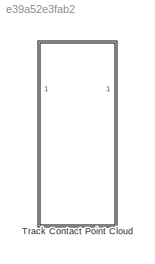
MODEL slx_e39a52e3fab2
KIND library
CONFIG SolverName = VariableStepAuto
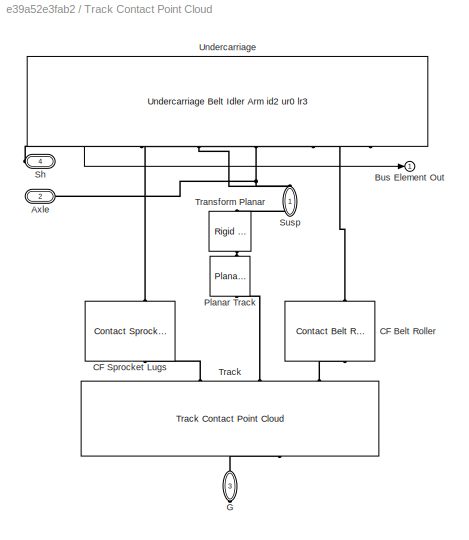
BLOCK [SubSystem] Track Contact Point Cloud
BLOCK [Reference] Track Contact Point Cloud/ CF Sprocket Lugs  REF=sm_trackV_lib_belt_contact_internal_sets/Contact
Sprocket Lugs
Planar
t21 s45
  NameLocation = left
  SourceBlock = sm_trackV_lib_belt_contact_internal_sets/Contact\nSprocket Lugs\nPlanar\nt21 s45
  SourceType = Contact Force (Planar), Belt to Sprocket
BLOCK [PMIOPort] Track Contact Point Cloud/Axle
  Port = 2
  Side = Left
BLOCK [Outport] Track Contact Point Cloud/Bus Element Out
BLOCK [Reference] Track Contact Point Cloud/CF Belt Roller   REF=sm_trackV_lib_belt_contact_internal_sets/Contact
Belt Roller
Planar
s45 r6
  NameLocation = right
  SourceBlock = sm_trackV_lib_belt_contact_internal_sets/Contact\nBelt Roller\nPlanar\ns45 r6
  SourceType = Contact Force (Planar), Belt to 6 Rollers
BLOCK [PMIOPort] Track Contact Point Cloud/G
  NameLocation = right
  Port = 3
  Side = Right
BLOCK [Reference] Track Contact Point Cloud/Planar Track  REF=sm_lib/Joints/Planar Joint
  NameLocation = left
  SourceBlock = sm_lib/Joints/Planar Joint
  SourceType = Planar Joint
BLOCK [PMIOPort] Track Contact Point Cloud/Sh
  Port = 4
  Side = Right
BLOCK [PMIOPort] Track Contact Point Cloud/Susp
  Side = Left
BLOCK [Reference] Track Contact Point Cloud/Track  REF=sm_trackV_lib_belt_track_s45/Track
Contact
Point Cloud
  NameLocation = right
  SourceBlock = sm_trackV_lib_belt_track_s45/Track\nContact\nPoint Cloud
  SourceType = Segmented Belt (Planar), Point Cloud to Ground
BLOCK [Reference] Track Contact Point Cloud/Transform Planar  REF=sm_lib/Frames and
Transforms/Rigid
Transform
  NameLocation = left
  SourceBlock = sm_lib/Frames and\nTransforms/Rigid\nTransform
  SourceType = Rigid\nTransform
BLOCK [Reference] Track Contact Point Cloud/Undercarriage  REF=sm_trackV_lib_belt_underc_idlerArm_i2u0l3/Undercarriage Belt
Idler Arm
id2 ur0 lr3
  NameLocation = right
  SourceBlock = sm_trackV_lib_belt_underc_idlerArm_i2u0l3/Undercarriage Belt\nIdler Arm\nid2 ur0 lr3
  SourceType = Undercarriage for Belt with Fixed Idler and Idler Arm (Planar)
LINE Track Contact Point Cloud/Undercarriage:1 -> Track Contact Point Cloud/Bus Element Out:1
PLINE Track Contact Point Cloud/ CF Sprocket Lugs:LConn1 -- Track Contact Point Cloud/Undercarriage:RConn4
PLINE Track Contact Point Cloud/ CF Sprocket Lugs:RConn1 -- Track Contact Point Cloud/Track:RConn1
PNET net1: Track Contact Point Cloud/Axle:RConn1 -- Track Contact Point Cloud/Transform Planar:LConn1 -- Track Contact Point Cloud/Undercarriage:RConn3
PLINE Track Contact Point Cloud/CF Belt Roller :LConn1 -- Track Contact Point Cloud/Track:RConn3
PLINE Track Contact Point Cloud/CF Belt Roller :RConn1 -- Track Contact Point Cloud/Undercarriage:RConn1
PLINE Track Contact Point Cloud/G:RConn1 -- Track Contact Point Cloud/Track:LConn1
PLINE Track Contact Point Cloud/Planar Track:LConn1 -- Track Contact Point Cloud/Transform Planar:RConn1
PLINE Track Contact Point Cloud/Planar Track:RConn1 -- Track Contact Point Cloud/Track:RConn2
PLINE Track Contact Point Cloud/Sh:RConn1 -- Track Contact Point Cloud/Undercarriage:RConn5
PLINE Track Contact Point Cloud/Susp:RConn1 -- Track Contact Point Cloud/Undercarriage:RConn2
note: PNET lines group multi-terminal physical nets as a canonical sorted terminal list (undirected conserving connections); 2-terminal nets keep the pairwise PLINE form
